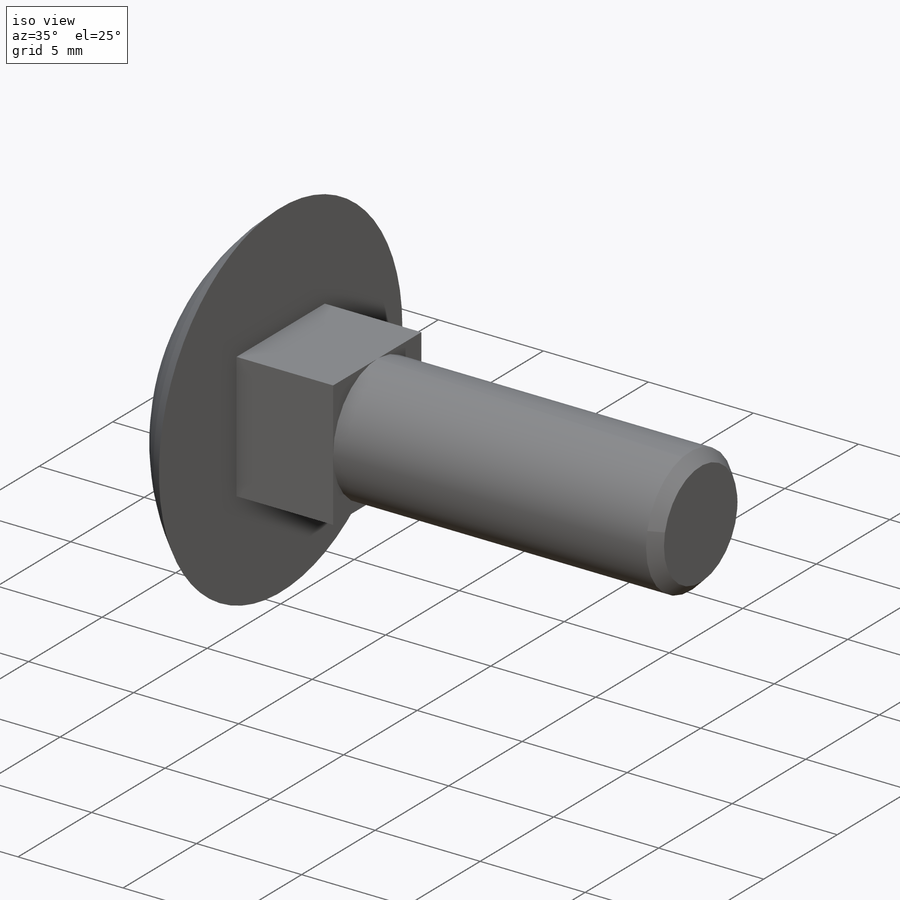
[diagram: iso view]
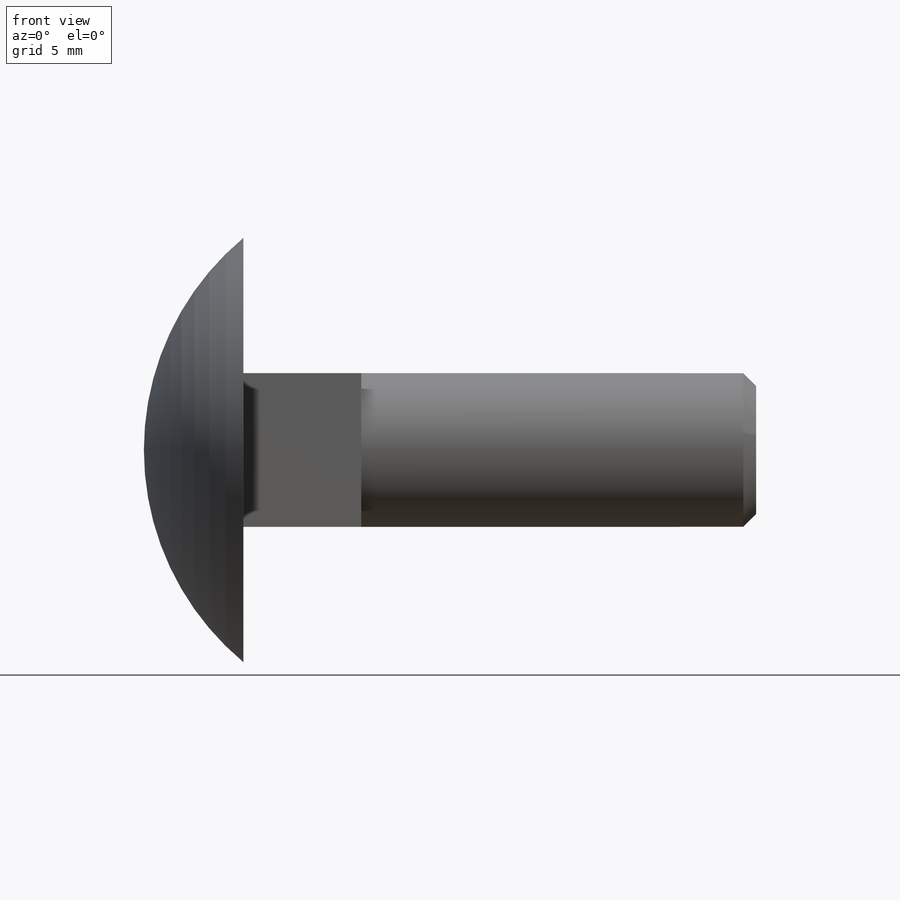
[diagram: front view]
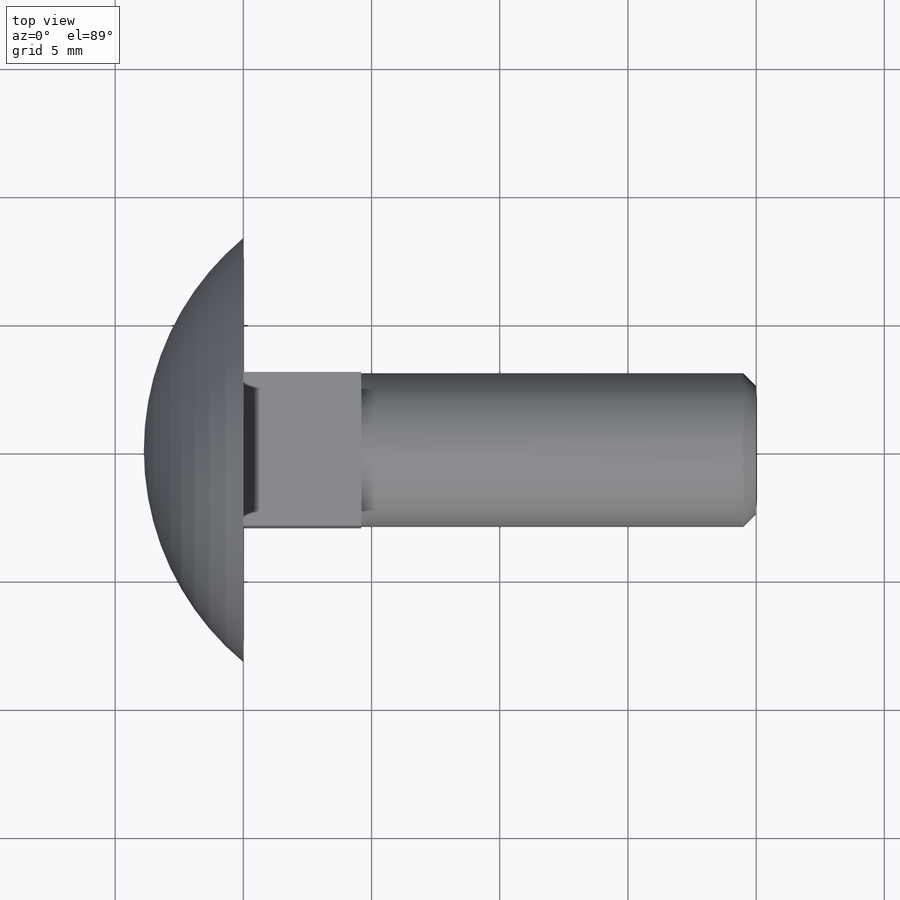
[diagram: top view]
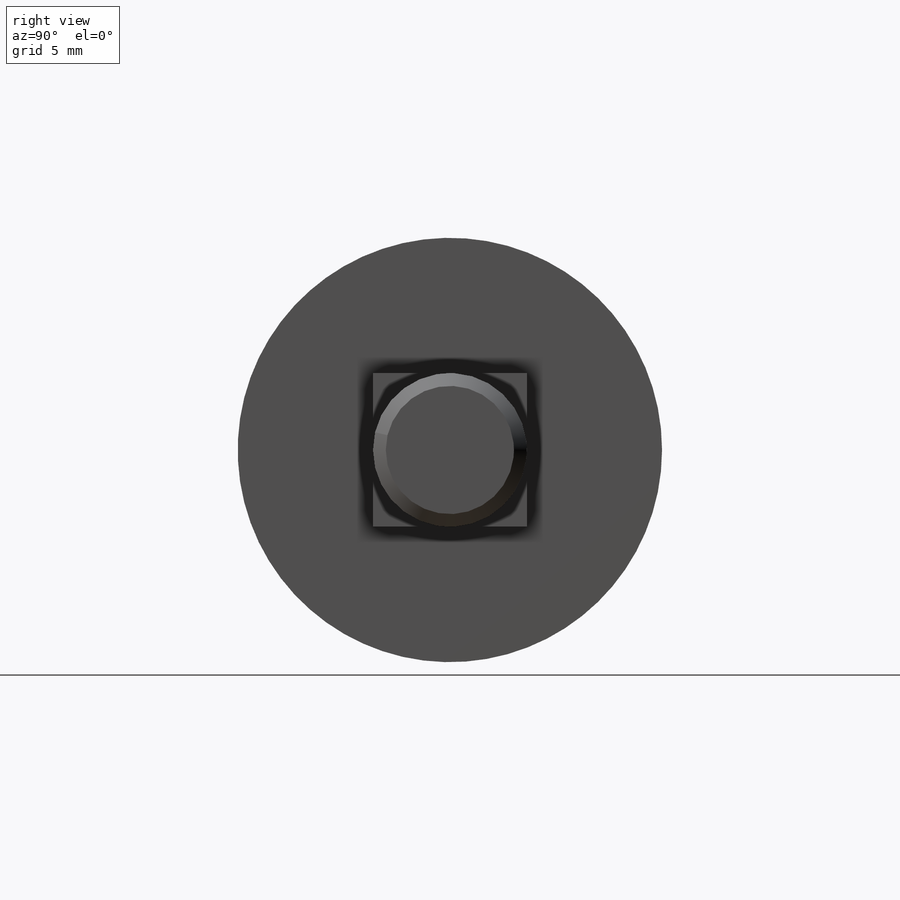
[diagram: right view]
SOLIDWORKS PART (.sldprt)
format: sldprt  version: not decoded by parser v0  size: 180,736 bytes
history: native  units: mm
features: plane x3, sketch x3, extrude x2, material x1, revolve x1, chamfer x1 (+13 scaffold rows collapsed)
feature tree (24):
  scaffold x13  (default folders/planes/origin — collapsed)
  material  "Material <nicht festgelegt>"
  plane  "Ebene vorne"
  plane  "Ebene oben"
  plane  "Ebene rechts"
  sketch  "Skizze1"  dims[D1=3.88mm D2=8.275mm]
  revolve  "Rotation1"  Angle=360deg
  sketch  "Skizze2"  dims[c1.D1=6.0mm c1.D2=6.0mm c2.D2=90.0deg]
  extrude  "Linear austragen1"  Depth=4.6mm
  sketch  "Skizze3"
  extrude  "Linear austragen2"  Depth=15.4mm
  chamfer  "Fase1"  Distance=0.5mm Angle=45deg
decode coverage: 6 of 7 modeling features carry decoded parameters
note: suppression state not decoded; provenance and decode notes live in map.json
